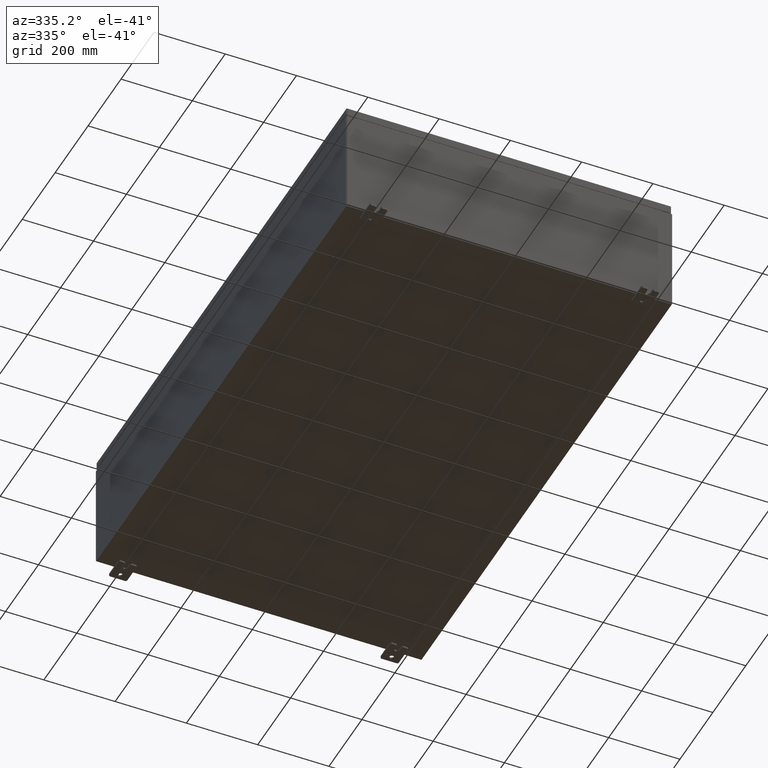
[diagram: clean part render]
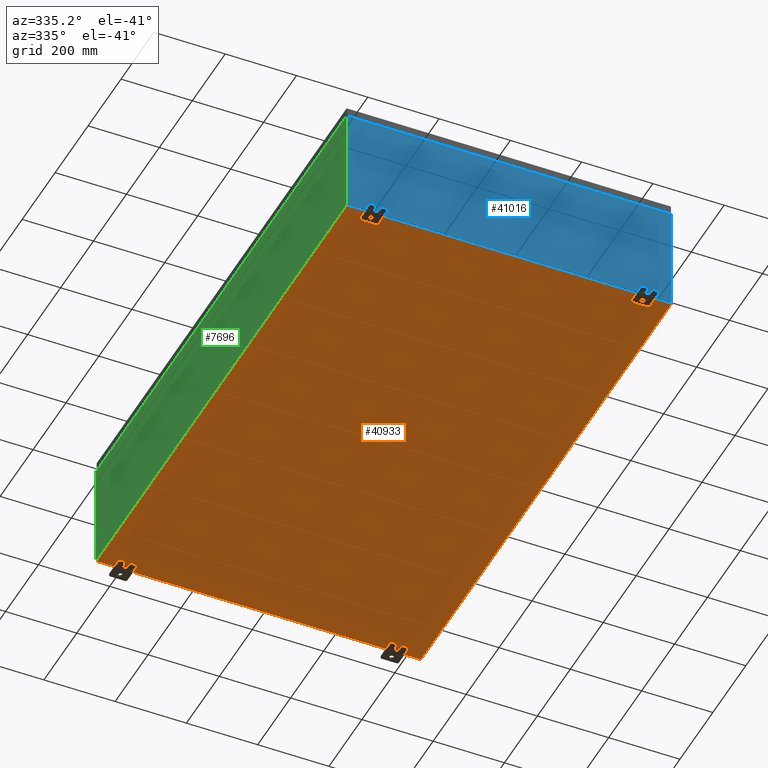
[diagram: same view with three faces highlighted in distinct colors, each labeled with its STEP entity id]
A machine part, auxiliary view with three faces highlighted in distinct colors.
Their STEP definitions:

[orange] entity #40933 — the highlighted planar face has unit normal (0, 0, -1).
#1450 = DIRECTION ( 'NONE',  ( -1.000000000000000000, -0.0000000000000000000, -0.0000000000000000000 ) ) ;
#1822 = VERTEX_POINT ( 'NONE', #47891 ) ;
#3877 = ORIENTED_EDGE ( 'NONE', *, *, #45446, .F. ) ;
#8218 = VERTEX_POINT ( 'NONE', #19869 ) ;
#8239 = DIRECTION ( 'NONE',  ( -0.0000000000000000000, -1.000000000000000000, -0.0000000000000000000 ) ) ;
#14284 = LINE ( 'NONE', #40690, #26855 ) ;
#15350 = VECTOR ( 'NONE', #56517, 39.37007874015748100 ) ;
#18998 = VECTOR ( 'NONE', #1450, 39.37007874015748100 ) ;
#19869 = CARTESIAN_POINT ( 'NONE',  ( 17.91229999999999800, 29.92529999999999300, -0.07469999999999994700 ) ) ;
#25861 = EDGE_LOOP ( 'NONE', ( #42708, #54693, #3877, #61533 ) ) ;
#26215 = CARTESIAN_POINT ( 'NONE',  ( 0.0000000000000000000, 0.0000000000000000000, -0.07470000000000000300 ) ) ;
#26855 = VECTOR ( 'NONE', #30170, 39.37007874015748100 ) ;
#27280 = CARTESIAN_POINT ( 'NONE',  ( 17.91229999999999800, -29.92530000000001100, -0.07470000000000000300 ) ) ;
#28142 = CARTESIAN_POINT ( 'NONE',  ( -18.00000000000000400, 29.92529999999998900, -0.07470000000000000300 ) ) ;
#28290 = LINE ( 'NONE', #29557, #55064 ) ;
#29557 = CARTESIAN_POINT ( 'NONE',  ( 17.91229999999999800, 29.92529999999999300, -0.07469999999999994700 ) ) ;
#29797 = EDGE_CURVE ( 'NONE', #1822, #61245, #14284, .T. ) ;
#30170 = DIRECTION ( 'NONE',  ( 1.000000000000000000, 0.0000000000000000000, 0.0000000000000000000 ) ) ;
#31555 = DIRECTION ( 'NONE',  ( -1.000000000000000000, 0.0000000000000000000, -0.0000000000000000000 ) ) ;
#33177 = LINE ( 'NONE', #28142, #18998 ) ;
#34733 = EDGE_CURVE ( 'NONE', #8218, #61245, #28290, .T. ) ;
#35247 = CARTESIAN_POINT ( 'NONE',  ( -17.91230000000000200, -29.92530000000002100, -0.07469999999999994700 ) ) ;
#40690 = CARTESIAN_POINT ( 'NONE',  ( -18.00000000000000400, -29.92530000000001100, -0.07470000000000000300 ) ) ;
#40933 = ADVANCED_FACE ( 'NONE', ( #60248 ), #57950, .T. ) ;
#41437 = CARTESIAN_POINT ( 'NONE',  ( -17.91230000000000200, 29.92529999999998600, -0.07470000000000000300 ) ) ;
#42708 = ORIENTED_EDGE ( 'NONE', *, *, #29797, .F. ) ;
#43867 = VERTEX_POINT ( 'NONE', #41437 ) ;
#45446 = EDGE_CURVE ( 'NONE', #8218, #43867, #33177, .T. ) ;
#47891 = CARTESIAN_POINT ( 'NONE',  ( -17.91230000000000200, -29.92530000000001100, -0.07469999999999994700 ) ) ;
#51281 = AXIS2_PLACEMENT_3D ( 'NONE', #26215, #63549, #31555 ) ;
#54693 = ORIENTED_EDGE ( 'NONE', *, *, #59785, .T. ) ;
#55064 = VECTOR ( 'NONE', #8239, 39.37007874015748100 ) ;
#56517 = DIRECTION ( 'NONE',  ( -0.0000000000000000000, 1.000000000000000000, -0.0000000000000000000 ) ) ;
#57950 = PLANE ( 'NONE',  #51281 ) ;
#59685 = LINE ( 'NONE', #35247, #15350 ) ;
#59785 = EDGE_CURVE ( 'NONE', #1822, #43867, #59685, .T. ) ;
#60248 = FACE_OUTER_BOUND ( 'NONE', #25861, .T. ) ;
#61245 = VERTEX_POINT ( 'NONE', #27280 ) ;
#61533 = ORIENTED_EDGE ( 'NONE', *, *, #34733, .T. ) ;
#63549 = DIRECTION ( 'NONE',  ( 0.0000000000000000000, 0.0000000000000000000, -1.000000000000000000 ) ) ;

[blue] entity #41016 — the highlighted planar face has unit normal (-0, 1, -0).
#624 = DIRECTION ( 'NONE',  ( -0.0000000000000000000, 1.000000000000000000, -0.0000000000000000000 ) ) ;
#737 = VERTEX_POINT ( 'NONE', #47031 ) ;
#1641 = DIRECTION ( 'NONE',  ( 1.000000000000000000, 0.0000000000000000000, 0.0000000000000000000 ) ) ;
#2054 = CIRCLE ( 'NONE', #35533, 0.01867499999999949400 ) ;
#2844 = DIRECTION ( 'NONE',  ( -8.681145560799821800E-014, 0.0000000000000000000, -1.000000000000000000 ) ) ;
#3303 = AXIS2_PLACEMENT_3D ( 'NONE', #48119, #64251, #32257 ) ;
#3860 = ORIENTED_EDGE ( 'NONE', *, *, #10900, .T. ) ;
#4250 = CARTESIAN_POINT ( 'NONE',  ( -17.92529999999999600, 0.0000000000000000000, 5.925299999999999100 ) ) ;
#4797 = ORIENTED_EDGE ( 'NONE', *, *, #33425, .T. ) ;
#8065 = EDGE_LOOP ( 'NONE', ( #11200, #39916, #20580, #4797, #31536, #48570, #22407, #49265, #64201, #36707, #3860, #11412 ) ) ;
#8971 = CARTESIAN_POINT ( 'NONE',  ( -16.88719999999998900, -0.0000000000000000000, 0.0000000000000000000 ) ) ;
#9550 = EDGE_CURVE ( 'NONE', #39478, #48286, #51627, .T. ) ;
#9555 = CARTESIAN_POINT ( 'NONE',  ( -16.92454999999998900, 0.0000000000000000000, 5.925299999999999100 ) ) ;
#10486 = EDGE_CURVE ( 'NONE', #14659, #32218, #26705, .T. ) ;
#10900 = EDGE_CURVE ( 'NONE', #737, #37380, #30845, .T. ) ;
#11200 = ORIENTED_EDGE ( 'NONE', *, *, #32041, .F. ) ;
#11412 = ORIENTED_EDGE ( 'NONE', *, *, #46862, .T. ) ;
#11872 = EDGE_CURVE ( 'NONE', #27725, #25508, #19939, .T. ) ;
#12630 = DIRECTION ( 'NONE',  ( 0.0000000000000000000, 0.0000000000000000000, -1.000000000000000000 ) ) ;
#14030 = LINE ( 'NONE', #23228, #53339 ) ;
#14626 = VECTOR ( 'NONE', #63119, 39.37007874015748100 ) ;
#14659 = VERTEX_POINT ( 'NONE', #53744 ) ;
#14873 = CARTESIAN_POINT ( 'NONE',  ( 17.92530000000000400, 0.0000000000000000000, -5.925300000000000000 ) ) ;
#15761 = CARTESIAN_POINT ( 'NONE',  ( -17.92529999999999600, 0.0000000000000000000, 5.925299999999999100 ) ) ;
#16665 = LINE ( 'NONE', #32977, #27525 ) ;
#17002 = CARTESIAN_POINT ( 'NONE',  ( 16.88720000000000000, 0.0000000000000000000, 0.0000000000000000000 ) ) ;
#17750 = LINE ( 'NONE', #45238, #58657 ) ;
#17852 = VERTEX_POINT ( 'NONE', #9555 ) ;
#19242 = CARTESIAN_POINT ( 'NONE',  ( 16.88720000000000000, 0.0000000000000000000, 5.912299999999999200 ) ) ;
#19939 = CIRCLE ( 'NONE', #61016, 0.01867499999999949400 ) ;
#20383 = EDGE_CURVE ( 'NONE', #54244, #27725, #68677, .T. ) ;
#20396 = CARTESIAN_POINT ( 'NONE',  ( 17.92530000000000400, 0.0000000000000000000, 5.925300000000000000 ) ) ;
#20580 = ORIENTED_EDGE ( 'NONE', *, *, #10486, .F. ) ;
#22363 = DIRECTION ( 'NONE',  ( 0.0000000000000000000, 0.0000000000000000000, 1.000000000000000000 ) ) ;
#22407 = ORIENTED_EDGE ( 'NONE', *, *, #20383, .F. ) ;
#22680 = EDGE_CURVE ( 'NONE', #25508, #29761, #28484, .T. ) ;
#23228 = CARTESIAN_POINT ( 'NONE',  ( -16.88719999999999600, 3.756290991288361700E-016, 5.912299999999999200 ) ) ;
#23786 = DIRECTION ( 'NONE',  ( -1.000000000000000000, -0.0000000000000000000, -0.0000000000000000000 ) ) ;
#24213 = CARTESIAN_POINT ( 'NONE',  ( 16.92454999999949200, -0.0000000000000000000, -1.469244821010302200E-012 ) ) ;
#24932 = EDGE_CURVE ( 'NONE', #32218, #37772, #2054, .T. ) ;
#25508 = VERTEX_POINT ( 'NONE', #69242 ) ;
#26705 = LINE ( 'NONE', #8971, #67630 ) ;
#27525 = VECTOR ( 'NONE', #64943, 39.37007874015748100 ) ;
#27725 = VERTEX_POINT ( 'NONE', #41126 ) ;
#28407 = CARTESIAN_POINT ( 'NONE',  ( 16.90587500000000200, 0.0000000000000000000, 5.874949999999999200 ) ) ;
#28484 = LINE ( 'NONE', #17002, #30137 ) ;
#29761 = VERTEX_POINT ( 'NONE', #19242 ) ;
#30137 = VECTOR ( 'NONE', #22363, 39.37007874015748100 ) ;
#30845 = LINE ( 'NONE', #4250, #41676 ) ;
#31536 = ORIENTED_EDGE ( 'NONE', *, *, #22680, .F. ) ;
#32041 = EDGE_CURVE ( 'NONE', #37772, #17852, #16665, .T. ) ;
#32218 = VERTEX_POINT ( 'NONE', #44638 ) ;
#32257 = DIRECTION ( 'NONE',  ( 0.0000000000000000000, -0.0000000000000000000, -1.000000000000000000 ) ) ;
#32698 = CARTESIAN_POINT ( 'NONE',  ( -16.90587499999999100, 0.0000000000000000000, 5.874949999999999200 ) ) ;
#32977 = CARTESIAN_POINT ( 'NONE',  ( -16.92454999999998900, -0.0000000000000000000, 0.0000000000000000000 ) ) ;
#33425 = EDGE_CURVE ( 'NONE', #14659, #29761, #14030, .T. ) ;
#35533 = AXIS2_PLACEMENT_3D ( 'NONE', #32698, #624, #38062 ) ;
#36485 = CARTESIAN_POINT ( 'NONE',  ( -17.92529999999999600, 0.0000000000000000000, 5.925299999999999100 ) ) ;
#36707 = ORIENTED_EDGE ( 'NONE', *, *, #50394, .T. ) ;
#37380 = VERTEX_POINT ( 'NONE', #15761 ) ;
#37772 = VERTEX_POINT ( 'NONE', #55949 ) ;
#37795 = CARTESIAN_POINT ( 'NONE',  ( 17.92530000000000400, 0.0000000000000000000, 5.925300000000000000 ) ) ;
#37903 = DIRECTION ( 'NONE',  ( -0.0000000000000000000, 1.000000000000000000, -0.0000000000000000000 ) ) ;
#38062 = DIRECTION ( 'NONE',  ( 0.0000000000000000000, 0.0000000000000000000, -1.000000000000000000 ) ) ;
#39478 = VERTEX_POINT ( 'NONE', #37795 ) ;
#39916 = ORIENTED_EDGE ( 'NONE', *, *, #24932, .F. ) ;
#40161 = DIRECTION ( 'NONE',  ( -0.0000000000000000000, -0.0000000000000000000, 1.000000000000000000 ) ) ;
#41016 = ADVANCED_FACE ( 'NONE', ( #56903 ), #53072, .F. ) ;
#41126 = CARTESIAN_POINT ( 'NONE',  ( 16.92455000000000000, 0.0000000000000000000, 5.874949999999999200 ) ) ;
#41676 = VECTOR ( 'NONE', #40161, 39.37007874015748100 ) ;
#43880 = LINE ( 'NONE', #62718, #68901 ) ;
#44638 = CARTESIAN_POINT ( 'NONE',  ( -16.88719999999998900, -0.0000000000000000000, 5.874949999999999200 ) ) ;
#45238 = CARTESIAN_POINT ( 'NONE',  ( -17.92529999999999600, 0.0000000000000000000, -5.925300000000000000 ) ) ;
#46862 = EDGE_CURVE ( 'NONE', #37380, #17852, #57293, .T. ) ;
#47031 = CARTESIAN_POINT ( 'NONE',  ( -17.92529999999999600, 0.0000000000000000000, -5.925300000000000000 ) ) ;
#47879 = CARTESIAN_POINT ( 'NONE',  ( 16.92455000000000400, 0.0000000000000000000, 5.925300000000000000 ) ) ;
#48119 = CARTESIAN_POINT ( 'NONE',  ( 0.0000000000000000000, 0.0000000000000000000, 0.0000000000000000000 ) ) ;
#48286 = VERTEX_POINT ( 'NONE', #14873 ) ;
#48570 = ORIENTED_EDGE ( 'NONE', *, *, #11872, .F. ) ;
#49265 = ORIENTED_EDGE ( 'NONE', *, *, #66111, .T. ) ;
#50394 = EDGE_CURVE ( 'NONE', #48286, #737, #17750, .T. ) ;
#51627 = LINE ( 'NONE', #20396, #65824 ) ;
#53072 = PLANE ( 'NONE',  #3303 ) ;
#53339 = VECTOR ( 'NONE', #1641, 39.37007874015748100 ) ;
#53744 = CARTESIAN_POINT ( 'NONE',  ( -16.88719999999998900, 3.756290991288361700E-016, 5.912299999999999200 ) ) ;
#53880 = DIRECTION ( 'NONE',  ( 0.0000000000000000000, 0.0000000000000000000, -1.000000000000000000 ) ) ;
#54244 = VERTEX_POINT ( 'NONE', #47879 ) ;
#54582 = VECTOR ( 'NONE', #2844, 39.37007874015748100 ) ;
#55949 = CARTESIAN_POINT ( 'NONE',  ( -16.92454999999998900, 0.0000000000000000000, 5.874949999999999200 ) ) ;
#56903 = FACE_OUTER_BOUND ( 'NONE', #8065, .T. ) ;
#57293 = LINE ( 'NONE', #36485, #14626 ) ;
#58657 = VECTOR ( 'NONE', #23786, 39.37007874015748100 ) ;
#61016 = AXIS2_PLACEMENT_3D ( 'NONE', #28407, #37903, #12630 ) ;
#61805 = DIRECTION ( 'NONE',  ( 0.0000000000000000000, 0.0000000000000000000, -1.000000000000000000 ) ) ;
#62718 = CARTESIAN_POINT ( 'NONE',  ( -17.92529999999999600, 0.0000000000000000000, 5.925299999999999100 ) ) ;
#63119 = DIRECTION ( 'NONE',  ( 1.000000000000000000, 0.0000000000000000000, 3.048036009064577000E-017 ) ) ;
#64201 = ORIENTED_EDGE ( 'NONE', *, *, #9550, .T. ) ;
#64251 = DIRECTION ( 'NONE',  ( 0.0000000000000000000, -1.000000000000000000, 0.0000000000000000000 ) ) ;
#64943 = DIRECTION ( 'NONE',  ( 0.0000000000000000000, 0.0000000000000000000, 1.000000000000000000 ) ) ;
#65824 = VECTOR ( 'NONE', #61805, 39.37007874015748100 ) ;
#66111 = EDGE_CURVE ( 'NONE', #54244, #39478, #43880, .T. ) ;
#67630 = VECTOR ( 'NONE', #53880, 39.37007874015748100 ) ;
#68041 = DIRECTION ( 'NONE',  ( 1.000000000000000000, 0.0000000000000000000, 3.048036009064577000E-017 ) ) ;
#68677 = LINE ( 'NONE', #24213, #54582 ) ;
#68901 = VECTOR ( 'NONE', #68041, 39.37007874015748100 ) ;
#69242 = CARTESIAN_POINT ( 'NONE',  ( 16.88720000000000000, 0.0000000000000000000, 5.874949999999999200 ) ) ;

[green] entity #7696 — the highlighted planar face has unit normal (1, 0, 0).
#872 = DIRECTION ( 'NONE',  ( -3.482016343714355500E-015, 0.0000000000000000000, 1.000000000000000000 ) ) ;
#1183 = VERTEX_POINT ( 'NONE', #50063 ) ;
#3932 = ORIENTED_EDGE ( 'NONE', *, *, #46343, .T. ) ;
#5137 = CARTESIAN_POINT ( 'NONE',  ( -18.00000000000000400, -29.92530000000001100, 0.01299999999999984700 ) ) ;
#7696 = ADVANCED_FACE ( 'NONE', ( #39246 ), #68549, .F. ) ;
#7833 = ORIENTED_EDGE ( 'NONE', *, *, #49981, .T. ) ;
#10558 = CARTESIAN_POINT ( 'NONE',  ( -18.00000000000004300, -29.92530000000001800, 11.83760000000000000 ) ) ;
#14775 = VERTEX_POINT ( 'NONE', #55374 ) ;
#16323 = DIRECTION ( 'NONE',  ( -0.0000000000000000000, 1.000000000000000000, -0.0000000000000000000 ) ) ;
#16548 = ORIENTED_EDGE ( 'NONE', *, *, #50896, .T. ) ;
#18932 = LINE ( 'NONE', #10558, #33111 ) ;
#19916 = CARTESIAN_POINT ( 'NONE',  ( -18.00000000000004300, 29.92529999999998900, 11.83760000000000000 ) ) ;
#24926 = EDGE_CURVE ( 'NONE', #44016, #1183, #60635, .T. ) ;
#29379 = LINE ( 'NONE', #32953, #57772 ) ;
#31992 = AXIS2_PLACEMENT_3D ( 'NONE', #40181, #67211, #54208 ) ;
#32795 = LINE ( 'NONE', #59035, #59530 ) ;
#32953 = CARTESIAN_POINT ( 'NONE',  ( -18.00000000000000400, -29.92530000000001100, -6.293710784286997500E-014 ) ) ;
#33111 = VECTOR ( 'NONE', #58518, 39.37007874015748100 ) ;
#39246 = FACE_OUTER_BOUND ( 'NONE', #56203, .T. ) ;
#40181 = CARTESIAN_POINT ( 'NONE',  ( -18.00000000000000400, 0.0000000000000000000, -6.293710784286997500E-014 ) ) ;
#44016 = VERTEX_POINT ( 'NONE', #5137 ) ;
#44738 = VECTOR ( 'NONE', #16323, 39.37007874015748100 ) ;
#46343 = EDGE_CURVE ( 'NONE', #14775, #66809, #18932, .T. ) ;
#49981 = EDGE_CURVE ( 'NONE', #66809, #1183, #32795, .T. ) ;
#50063 = CARTESIAN_POINT ( 'NONE',  ( -18.00000000000000400, 29.92529999999998600, 0.01299999999999984700 ) ) ;
#50896 = EDGE_CURVE ( 'NONE', #44016, #14775, #29379, .T. ) ;
#54208 = DIRECTION ( 'NONE',  ( 3.482016343714355100E-015, 0.0000000000000000000, -1.000000000000000000 ) ) ;
#55374 = CARTESIAN_POINT ( 'NONE',  ( -18.00000000000004300, -29.92530000000001100, 11.83760000000000000 ) ) ;
#56203 = EDGE_LOOP ( 'NONE', ( #3932, #7833, #63252, #16548 ) ) ;
#57772 = VECTOR ( 'NONE', #872, 39.37007874015748100 ) ;
#58518 = DIRECTION ( 'NONE',  ( 0.0000000000000000000, 1.000000000000000000, 0.0000000000000000000 ) ) ;
#59035 = CARTESIAN_POINT ( 'NONE',  ( -18.00000000000000400, 29.92529999999998900, -6.293710784286997500E-014 ) ) ;
#59530 = VECTOR ( 'NONE', #64389, 39.37007874015748100 ) ;
#60635 = LINE ( 'NONE', #64447, #44738 ) ;
#63252 = ORIENTED_EDGE ( 'NONE', *, *, #24926, .F. ) ;
#64389 = DIRECTION ( 'NONE',  ( 3.482016343714355500E-015, 0.0000000000000000000, -1.000000000000000000 ) ) ;
#64447 = CARTESIAN_POINT ( 'NONE',  ( -18.00000000000000400, 29.92529999999998900, 0.01299999999999984700 ) ) ;
#66809 = VERTEX_POINT ( 'NONE', #19916 ) ;
#67211 = DIRECTION ( 'NONE',  ( 1.000000000000000000, 0.0000000000000000000, 3.482016343714355100E-015 ) ) ;
#68549 = PLANE ( 'NONE',  #31992 ) ;